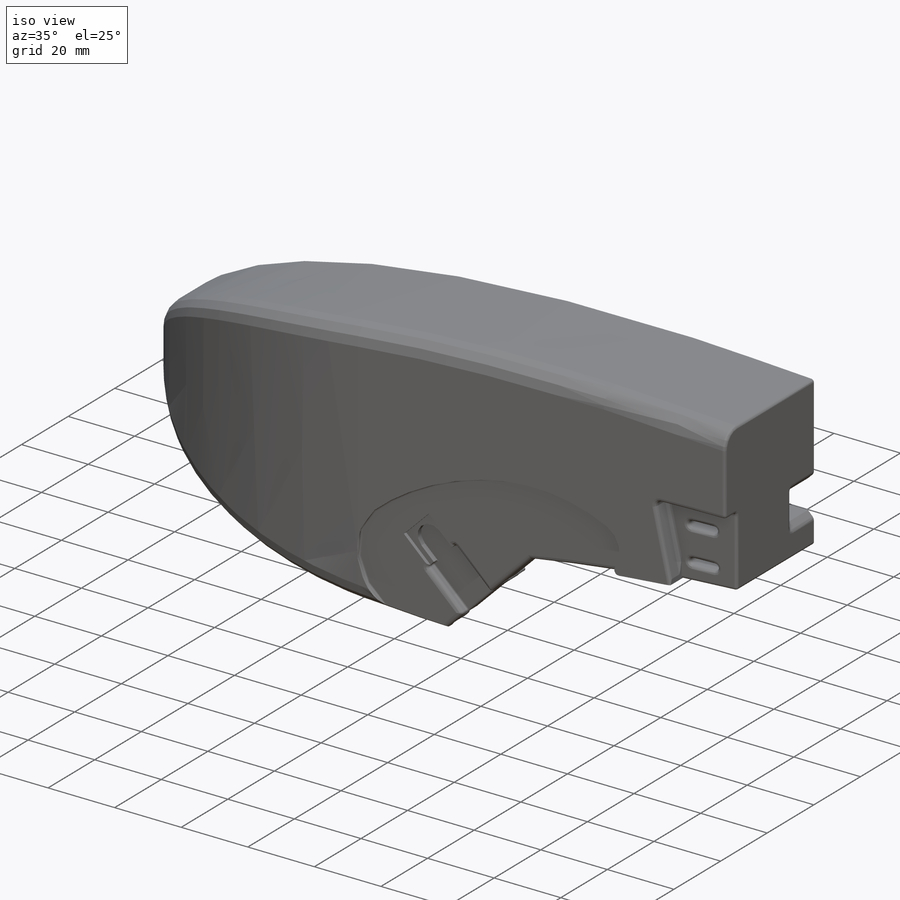
[diagram: iso view]
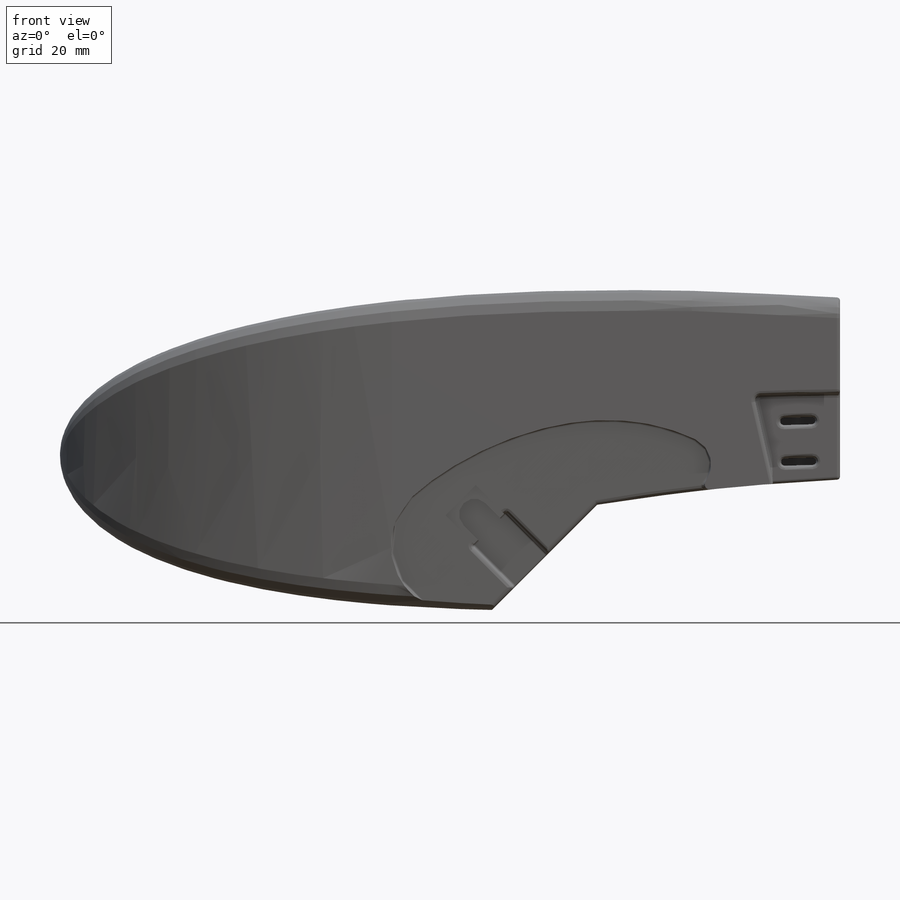
[diagram: front view]
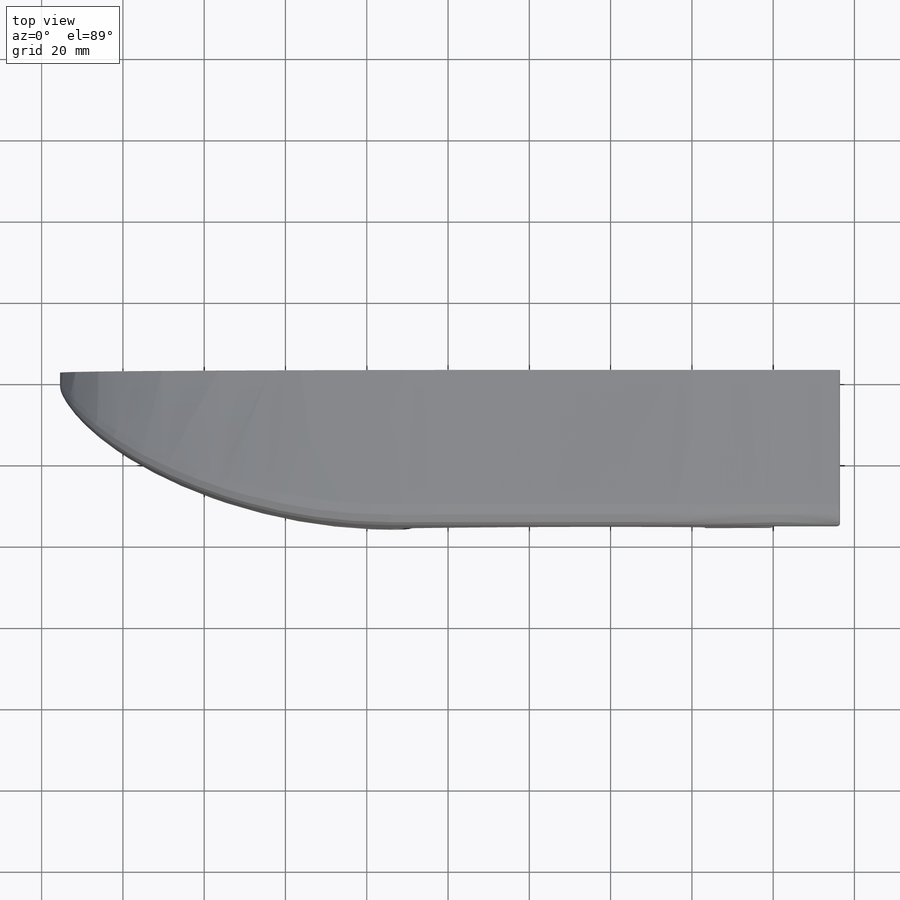
[diagram: top view]
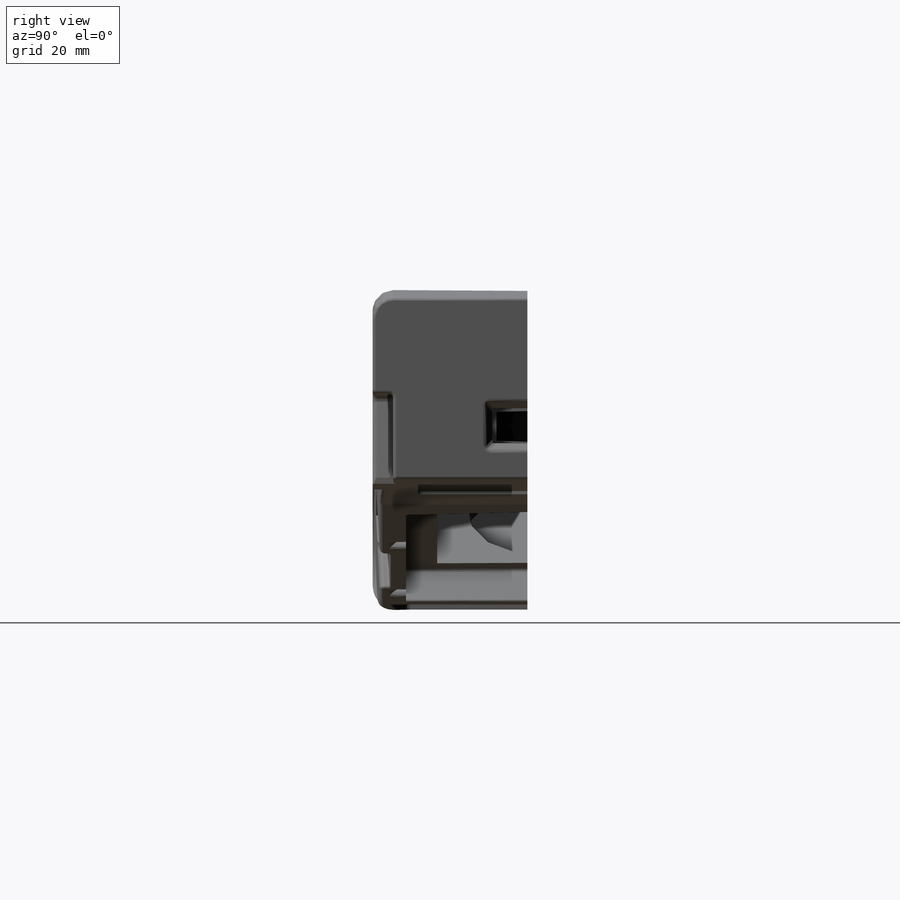
[diagram: right view]
SOLIDWORKS PART (.sldprt)
format: sldprt  version: not decoded by parser v0  size: 1,783,296 bytes
history: native  units: mm
features: sketch x11, cut_extrude x10, chamfer x4, fillet x2, material x1, extrude x1 (+20 scaffold rows collapsed; 7 parser-record rows omitted)
feature tree (56):
  scaffold x20  (default folders/planes/origin — collapsed)
  material  "Material <not specified>"
  parser-record x7  (decoder bookkeeping rows leaked as tree rows — omitted from the tree; the rows remain in map.json)
  sketch  "Sketch4"  dims[D1=9.525mm D2=9.525mm]
  cut_extrude  "locator_holes"  Depth=6.35mm
  fillet  "Fillet5"  Radius=1.651mm
  fillet  "Fillet6"  Radius=2.54mm
  sketch  "Sketch11"
  cut_extrude  "Extrude2"  Depth=7.62mm
  chamfer  "Chamfer2"  Distance=7.62mm Angle=45deg
  sketch  "Sketch14"  dims[c1.D1=27.686mm c1.D2=27.686mm c2.D1=~27.964548mm]
  cut_extrude  "Cut-Extrude1"  Depth=22.225mm
  chamfer  "Chamfer3"  Distance=12.065mm Angle=45deg
  chamfer  "Chamfer4"  Distance=15.24mm Angle=45deg
  sketch  "Sketch15"  dims[D1=15.24mm]
  cut_extrude  "Extrude4"  Depth=2.54mm
  sketch  "Sketch16"  dims[c1.D1=0.0mm c1.D2=0.0mm c2.D1=0.0mm c2.D2=0.0mm c3.D1=0.0mm]
  cut_extrude  "Extrude5"  [1 undecoded]
  sketch  "Sketch17"
  cut_extrude  "Extrude6"  [1 undecoded]
  sketch  "Sketch18"  dims[D1=0.0mm]
  cut_extrude  "Extrude7"  [1 undecoded]
  sketch  "Sketch19"  dims[D1=3.2512mm]
  extrude  "Extrude8"  [1 undecoded]
  sketch  "Sketch20"  dims[D1=6.35mm]
  cut_extrude  "Extrude9"  [1 undecoded]
  sketch  "Sketch22"  dims[c1.D1=10.16mm c1.D2=7.112mm c1.D3=6.35mm c2.D1=7.112mm c2.D3=10.16mm]
  cut_extrude  "Extrude10"  Depth=5.08mm
  chamfer  "Chamfer5"  Distance=3.556mm Angle=45deg
  sketch  "Sketch12"  dims[D1=3.81mm D2=5.08mm]
  cut_extrude  "TEXT"  Depth=0.254mm
decode coverage: 21 of 28 modeling features carry decoded parameters
note: ~ marks probable driven/reference dimensions
note: 5 parameter values undecoded
summary: no parameter record found for 5 features
note: suppression state not decoded; provenance and decode notes live in map.json
